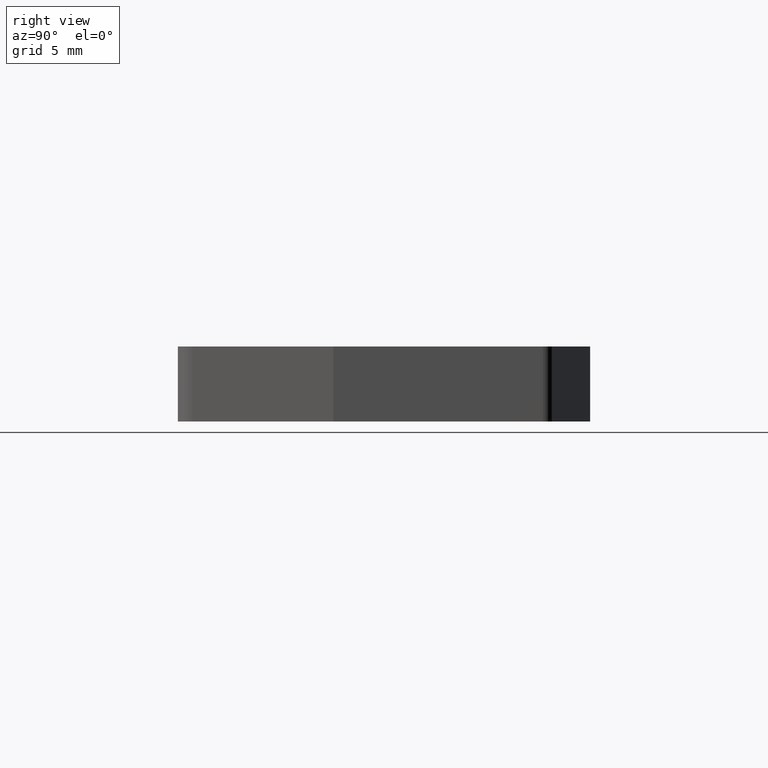
[diagram: clean part render]
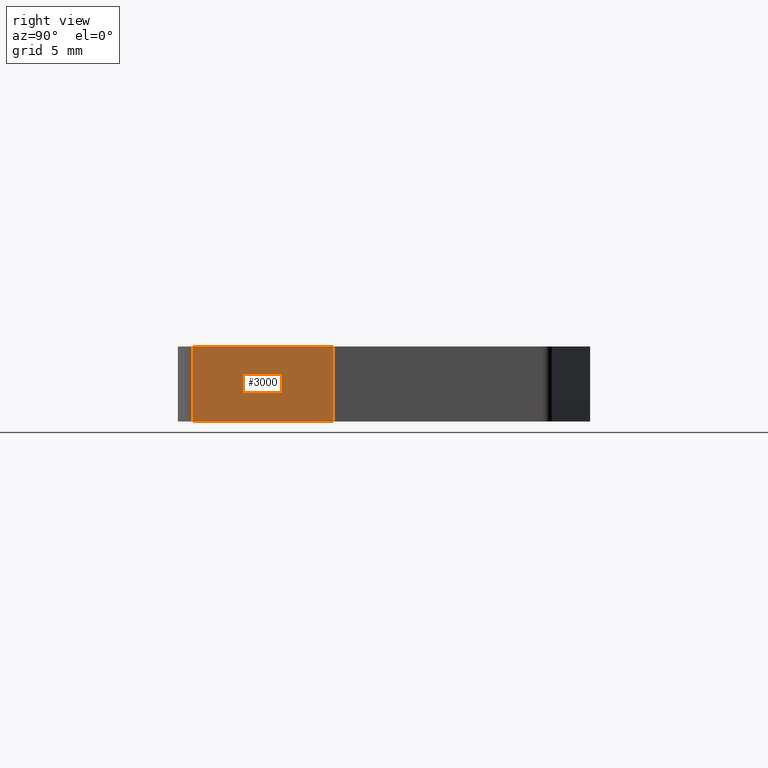
[diagram: same view with one face highlighted and labeled with its STEP entity id]
A machine part, right view. The second image highlights one B-rep face of the part: STEP entity #3000.
In plain terms, the highlighted planar face has unit normal (0.9744, -0.225, 0).
Its self-contained STEP definition (entity closure, byte-faithful):
#790=CARTESIAN_POINT('',(-37.0895995849707,0.794364607063827,0.));
#800=VERTEX_POINT('',#790);
#830=CARTESIAN_POINT('',(-35.3523277467458,8.31931566140769,0.));
#840=DIRECTION('',(-0.224951054343888,-0.97437006478523,0.));
#850=VECTOR('',#840,1.);
#860=LINE('',#830,#850);
#870=CARTESIAN_POINT('',(-35.3523277467458,8.31931566140769,0.));
#880=VERTEX_POINT('',#870);
#890=EDGE_CURVE('',#880,#800,#860,.T.);
#1360=CARTESIAN_POINT('',(-35.3523277467458,8.31931566140769,4.));
#1370=VERTEX_POINT('',#1360);
#1400=CARTESIAN_POINT('',(-35.3523277467458,8.31931566140769,4.));
#1410=DIRECTION('',(-0.224951054343888,-0.97437006478523,0.));
#1420=VECTOR('',#1410,1.);
#1430=LINE('',#1400,#1420);
#1440=CARTESIAN_POINT('',(-37.0895995849707,0.794364607063827,4.));
#1450=VERTEX_POINT('',#1440);
#1460=EDGE_CURVE('',#1370,#1450,#1430,.T.);
#2670=CARTESIAN_POINT('',(-37.0895995849707,0.794364607063827,0.));
#2680=DIRECTION('',(0.,0.,1.));
#2690=VECTOR('',#2680,1.);
#2700=LINE('',#2670,#2690);
#2710=EDGE_CURVE('',#800,#1450,#2700,.T.);
#2840=CARTESIAN_POINT('',(-35.3523277467458,8.31931566140769,0.));
#2850=DIRECTION('',(0.97437006478523,-0.224951054343888,0.));
#2860=DIRECTION('',(-0.224951054343888,-0.97437006478523,0.));
#2870=AXIS2_PLACEMENT_3D('',#2840,#2850,#2860);
#2880=PLANE('',#2870);
#2890=ORIENTED_EDGE('',*,*,#2710,.F.);
#2900=ORIENTED_EDGE('',*,*,#1460,.T.);
#2910=CARTESIAN_POINT('',(-35.3523277467458,8.31931566140769,0.));
#2920=DIRECTION('',(0.,0.,1.));
#2930=VECTOR('',#2920,1.);
#2940=LINE('',#2910,#2930);
#2950=EDGE_CURVE('',#880,#1370,#2940,.T.);
#2960=ORIENTED_EDGE('',*,*,#2950,.T.);
#2970=ORIENTED_EDGE('',*,*,#890,.F.);
#2980=EDGE_LOOP('',(#2970,#2960,#2900,#2890));
#2990=FACE_OUTER_BOUND('',#2980,.T.);
#3000=ADVANCED_FACE('',(#2990),#2880,.T.);